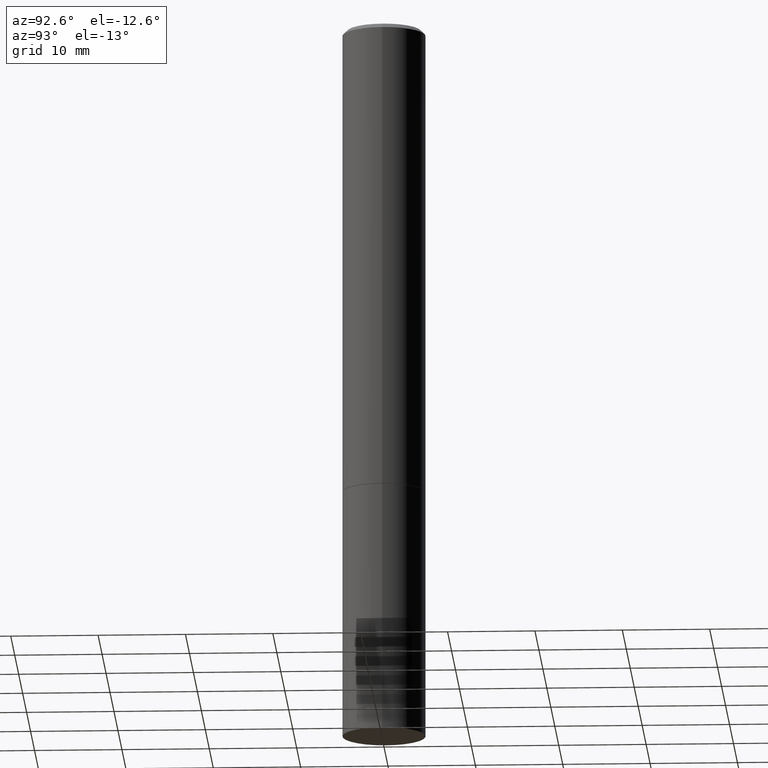
[diagram: clean part render]
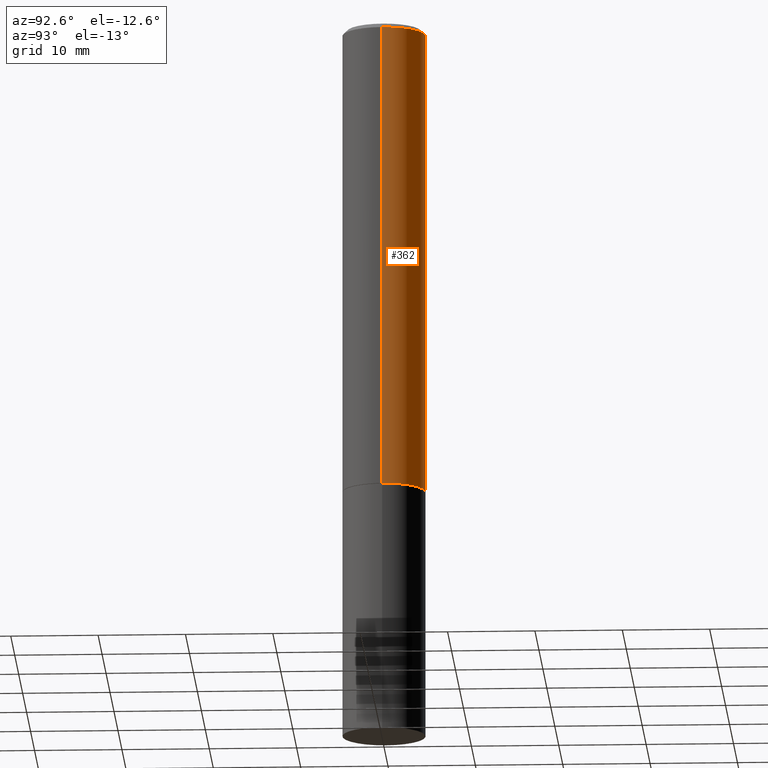
[diagram: same view with one face highlighted and labeled with its STEP entity id]
A machine part, auxiliary view. The second image highlights one B-rep face of the part: STEP entity #362.
In plain terms, the highlighted cylindrical surface (partial cylindrical patch) has radius 4.7625 mm, axis along (-0, 0, 1).
Its self-contained STEP definition (entity closure, byte-faithful):
#23 = VERTEX_POINT ( 'NONE', #289 ) ;
#26 = EDGE_LOOP ( 'NONE', ( #106, #350, #50, #301 ) ) ;
#33 = EDGE_CURVE ( 'NONE', #358, #243, #177, .T. ) ;
#39 = CARTESIAN_POINT ( 'NONE',  ( 0.1875000000000000278, -8.725211865769015625E-15, -2.123999999999999666 ) ) ;
#41 = DIRECTION ( 'NONE',  ( -2.445468806185136597E-29, 3.491481338843145583E-15, 1.000000000000000000 ) ) ;
#50 = ORIENTED_EDGE ( 'NONE', *, *, #277, .F. ) ;
#99 = CARTESIAN_POINT ( 'NONE',  ( 0.000000000000000000, 0.000000000000000000, 0.000000000000000000 ) ) ;
#106 = ORIENTED_EDGE ( 'NONE', *, *, #179, .T. ) ;
#113 = CARTESIAN_POINT ( 'NONE',  ( 5.194175744337229665E-29, -7.415906363702840616E-15, -2.123999999999999666 ) ) ;
#121 = CIRCLE ( 'NONE', #220, 0.1875000000000000278 ) ;
#127 = CARTESIAN_POINT ( 'NONE',  ( -0.1874999999999997502, 1.239475875289309935E-15, -0.02000000000000004205 ) ) ;
#138 = CARTESIAN_POINT ( 'NONE',  ( -0.1874999999999998890, 1.332267629550187060E-15, -9.223003294227942385E-30 ) ) ;
#145 = VECTOR ( 'NONE', #287, 39.37007874015748143 ) ;
#146 = AXIS2_PLACEMENT_3D ( 'NONE', #99, #41, #317 ) ;
#157 = AXIS2_PLACEMENT_3D ( 'NONE', #326, #348, #322 ) ;
#165 = EDGE_CURVE ( 'NONE', #23, #269, #273, .T. ) ;
#174 = CARTESIAN_POINT ( 'NONE',  ( 0.1874999999999998890, -1.309305502066174022E-15, 9.142831454617374006E-30 ) ) ;
#177 = LINE ( 'NONE', #174, #145 ) ;
#179 = EDGE_CURVE ( 'NONE', #358, #23, #121, .T. ) ;
#197 = DIRECTION ( 'NONE',  ( -2.445468806185136597E-29, 3.491481338843145583E-15, 1.000000000000000000 ) ) ;
#220 = AXIS2_PLACEMENT_3D ( 'NONE', #113, #197, #342 ) ;
#231 = FACE_OUTER_BOUND ( 'NONE', #26, .T. ) ;
#243 = VERTEX_POINT ( 'NONE', #258 ) ;
#248 = VECTOR ( 'NONE', #250, 39.37007874015748143 ) ;
#250 = DIRECTION ( 'NONE',  ( -2.445468806185136877E-29, 3.491481338843145188E-15, 1.000000000000000000 ) ) ;
#258 = CARTESIAN_POINT ( 'NONE',  ( 0.1874999999999997502, -1.356173001359023494E-15, -0.02000000000000004205 ) ) ;
#265 = CYLINDRICAL_SURFACE ( 'NONE', #146, 0.1874999999999998890 ) ;
#269 = VERTEX_POINT ( 'NONE', #127 ) ;
#273 = LINE ( 'NONE', #138, #248 ) ;
#277 = EDGE_CURVE ( 'NONE', #243, #269, #316, .T. ) ;
#287 = DIRECTION ( 'NONE',  ( -2.445468806185136877E-29, 3.491481338843145188E-15, 1.000000000000000000 ) ) ;
#289 = CARTESIAN_POINT ( 'NONE',  ( -0.1875000000000000278, -2.410600365689662531E-15, -2.123999999999999666 ) ) ;
#301 = ORIENTED_EDGE ( 'NONE', *, *, #33, .F. ) ;
#316 = CIRCLE ( 'NONE', #157, 0.1874999999999997502 ) ;
#317 = DIRECTION ( 'NONE',  ( 1.000000000000000000, -6.982962677686265922E-15, 4.876176775795935793E-29 ) ) ;
#322 = DIRECTION ( 'NONE',  ( 1.000000000000000000, -6.982962677686265133E-15, 0.000000000000000000 ) ) ;
#326 = CARTESIAN_POINT ( 'NONE',  ( 4.890937612370283668E-31, -6.982962677686305168E-17, -0.02000000000000004205 ) ) ;
#342 = DIRECTION ( 'NONE',  ( 1.000000000000000000, -6.982962677686266711E-15, 0.000000000000000000 ) ) ;
#348 = DIRECTION ( 'NONE',  ( -2.445468806185136597E-29, 3.491481338843145583E-15, 1.000000000000000000 ) ) ;
#350 = ORIENTED_EDGE ( 'NONE', *, *, #165, .T. ) ;
#358 = VERTEX_POINT ( 'NONE', #39 ) ;
#362 = ADVANCED_FACE ( 'NONE', ( #231 ), #265, .T. ) ;